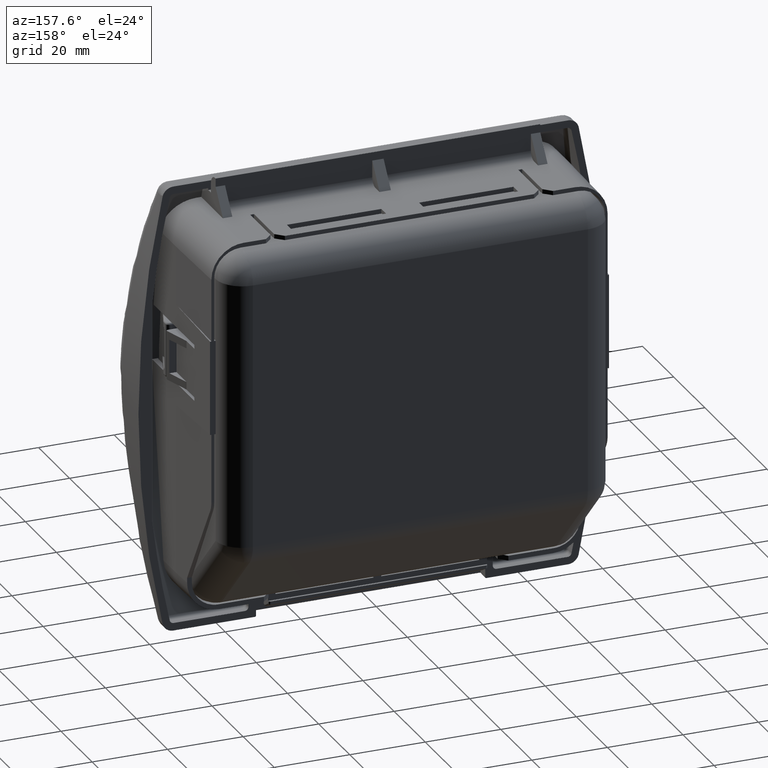
[diagram: clean part render]
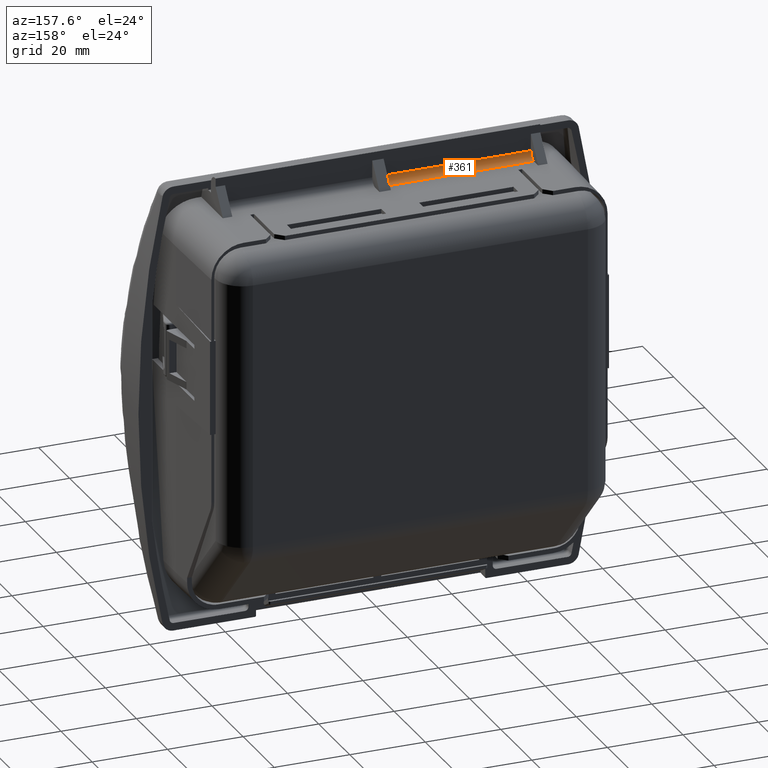
[diagram: same view with one face highlighted and labeled with its STEP entity id]
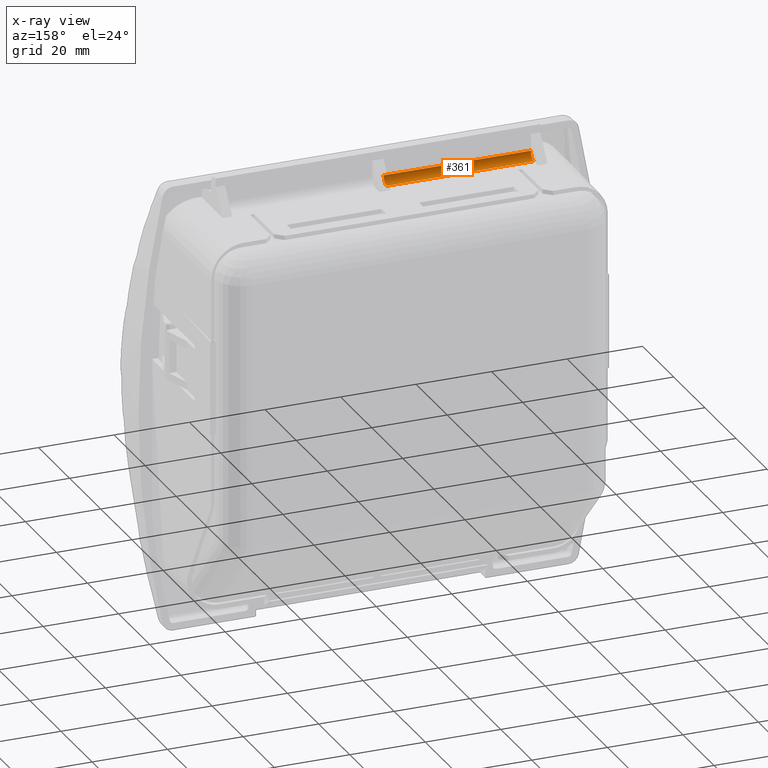
[diagram: x-ray of the same camera — body ghosted, the highlighted face saturated]
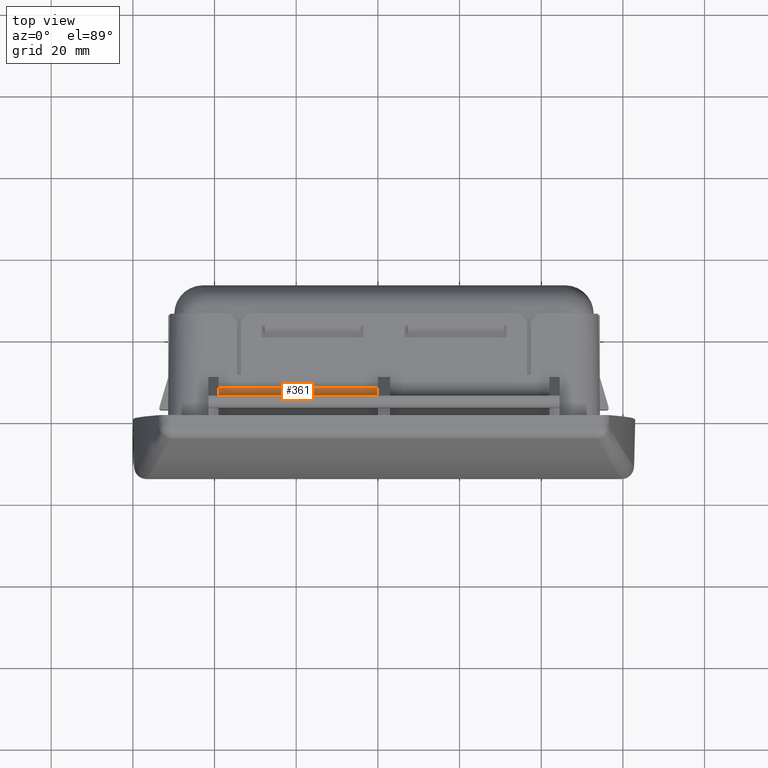
[diagram: same view with one face highlighted and labeled with its STEP entity id]
A machine part, auxiliary view. The second image highlights one B-rep face of the part: STEP entity #361.
The next image is the same camera in x-ray: the body ghosted, the highlighted face saturated — about 0% of this face is hidden behind the body in this view.
A second angle (top view) of the same face is appended — the face is thin or edge-on in the first view.
In plain terms, the highlighted cylindrical surface (edge-blend (fillet) strip) has radius 2 mm, axis along (-1, -0, 0).
Its self-contained STEP definition (entity closure, byte-faithful):
#361=ADVANCED_FACE('',(#2976),#2975,.F.);
#2975=CYLINDRICAL_SURFACE('',#10566,2.00000000000E+00);
#2976=FACE_OUTER_BOUND('',#10567,.T.);
#10563=CARTESIAN_POINT('',(-2.39000344491E+02,6.70000000000E+00,5.52999999995E+01));
#10564=DIRECTION('',(-1.00000000000E+00,-1.78973261039E-26,5.46976053016E-15));
#10565=DIRECTION('',(2.91487395829E-28,1.00000000000E+00,3.32534000336E-12));
#10566=AXIS2_PLACEMENT_3D('',#10563,#10564,#10565);
#10567=EDGE_LOOP('',(#17373,#17374,#17375,#17376));
#17373=ORIENTED_EDGE('',*,*,#20557,.F.);
#17374=ORIENTED_EDGE('',*,*,#20558,.F.);
#17375=ORIENTED_EDGE('',*,*,#20559,.F.);
#17376=ORIENTED_EDGE('',*,*,#20135,.F.);
#20135=EDGE_CURVE('',#23391,#23398,#23399,.T.);
#20557=EDGE_CURVE('',#26186,#23391,#26187,.T.);
#20558=EDGE_CURVE('',#26193,#26186,#26194,.T.);
#20559=EDGE_CURVE('',#23398,#26193,#26200,.T.);
#23391=VERTEX_POINT('',#34666);
#23398=VERTEX_POINT('',#34670);
#23399=LINE('',#34671,#34672);
#26186=VERTEX_POINT('',#36602);
#26187=CIRCLE('',#36606,2.00000000000E+00);
#26193=VERTEX_POINT('',#36607);
#26194=LINE('',#36608,#36609);
#26200=CIRCLE('',#36614,2.00000000000E+00);
#34666=CARTESIAN_POINT('',(-2.39000344491E+02,6.70000000000E+00,5.32999999995E+01));
#34670=CARTESIAN_POINT('',(-2.00000344491E+02,6.70000000000E+00,5.32999999995E+01));
#34671=CARTESIAN_POINT('',(-2.39000344491E+02,6.70000000000E+00,5.32999999995E+01));
#34672=VECTOR('',#34673,3.90000000000E+01);
#34673=DIRECTION('',(1.00000000000E+00,0.00000000000E+00,0.00000000000E+00));
#36602=CARTESIAN_POINT('',(-2.39000344491E+02,4.70000000000E+00,5.52999999995E+01));
#36603=CARTESIAN_POINT('',(-2.39000344491E+02,6.70000000000E+00,5.52999999995E+01));
#36604=DIRECTION('',(1.00000000000E+00,0.00000000000E+00,0.00000000000E+00));
#36605=DIRECTION('',(-0.00000000000E+00,1.00000000000E+00,6.92068624630E-12));
#36606=AXIS2_PLACEMENT_3D('',#36603,#36604,#36605);
#36607=CARTESIAN_POINT('',(-2.00000344491E+02,4.70000000000E+00,5.52999999995E+01));
#36608=CARTESIAN_POINT('',(-2.00000344491E+02,4.70000000000E+00,5.52999999995E+01));
#36609=VECTOR('',#36610,3.90000000000E+01);
#36610=DIRECTION('',(-1.00000000000E+00,0.00000000000E+00,0.00000000000E+00));
#36611=CARTESIAN_POINT('',(-2.00000344491E+02,6.70000000000E+00,5.52999999995E+01));
#36612=DIRECTION('',(-1.00000000000E+00,-5.02429586781E-15,2.84217094304E-14));
#36613=DIRECTION('',(2.84217094304E-14,1.59872115546E-14,1.00000000000E+00));
#36614=AXIS2_PLACEMENT_3D('',#36611,#36612,#36613);